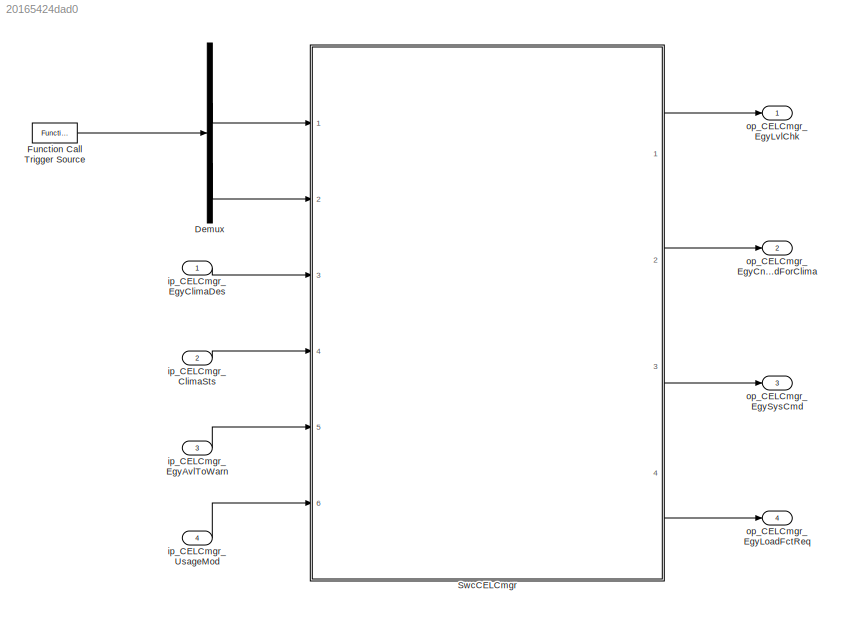
MODEL slx_20165424dad0
KIND model
CONFIG AbsTol = auto
CONFIG EnableMultiTasking = on
CONFIG FixedStep = auto
CONFIG MaxStep = auto
CONFIG MinStep = auto
CONFIG RelTol = 1e-3
CONFIG SampleTimeConstraint = Unconstrained
CONFIG Solver = FixedStepDiscrete
CONFIG SolverName = FixedStepDiscrete
CONFIG StartTime = 0.0
CONFIG StopTime = 50.0
BLOCK [Demux] Demux
  DisplayOption = bar
  Outputs = 2
  Ports = [1, 2]
BLOCK [Reference] Function Call Trigger Source  REF=simulink/Ports &
Subsystems/Function-Call
Generator
  Ports = [0, 1]
  SourceBlock = simulink/Ports &\nSubsystems/Function-Call\nGenerator
  SourceProductBaseCode = SL
  SourceProductName = Simulink
  SourceType = Function-Call Generator
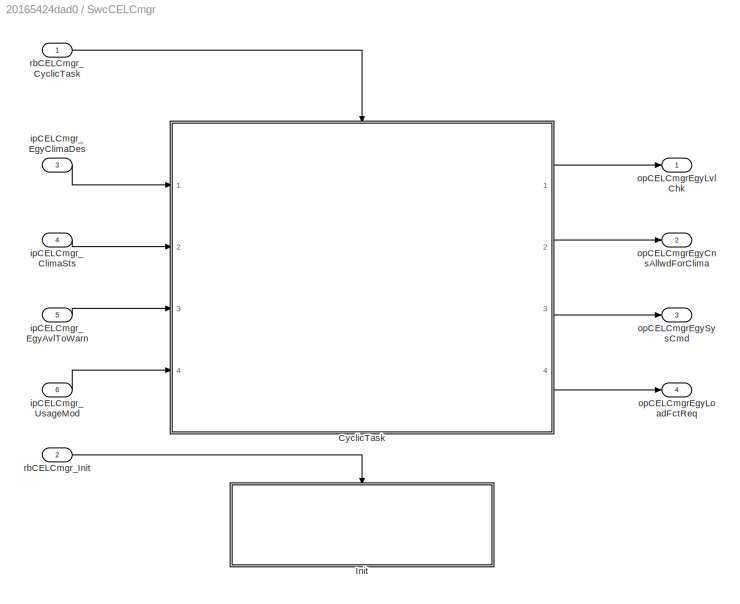
BLOCK [SubSystem] SwcCELCmgr
  Ports = [6, 4]
  RequestExecContextInheritance = off
  Variant = off
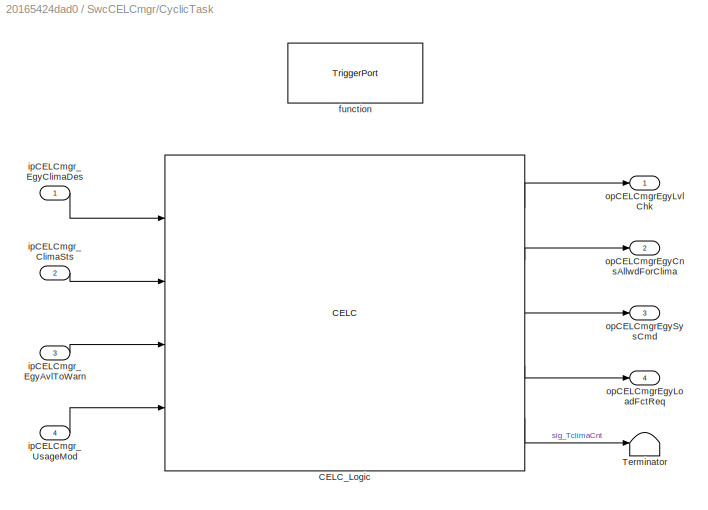
BLOCK [SubSystem] SwcCELCmgr/CyclicTask
  Description = Centralized energy load control function period task,T=10ms
  Ports = [4, 4, 0, 1]
  RequestExecContextInheritance = off
  Variant = off
BLOCK [Reference] SwcCELCmgr/CyclicTask/CELC_Logic  REF=CELCmgrLogicLib/CELC
  Ports = [4, 5]
  SourceBlock = CELCmgrLogicLib/CELC
  SourceType = SubSystem
BLOCK [Terminator] SwcCELCmgr/CyclicTask/Terminator
BLOCK [TriggerPort] SwcCELCmgr/CyclicTask/function
  PortDimensions = 1
  Ports = []
  StatesWhenEnabling = held
  TriggerType = function-call
  VariantControl = Variant
BLOCK [Inport] SwcCELCmgr/CyclicTask/ipCELCmgr_ClimaSts
  IconDisplay = Port number
  OutDataTypeStr = uint8
  Port = 2
  PortDimensions = 1
  SamplingMode = Sample based
  SignalType = real
  VarSizeSig = No
BLOCK [Inport] SwcCELCmgr/CyclicTask/ipCELCmgr_EgyAvlToWarn
  IconDisplay = Port number
  OutDataTypeStr = uint16
  Port = 3
  PortDimensions = 1
  SamplingMode = Sample based
  SignalType = real
  VarSizeSig = No
BLOCK [Inport] SwcCELCmgr/CyclicTask/ipCELCmgr_EgyClimaDes
  IconDisplay = Port number
  OutDataTypeStr = uint16
  PortDimensions = 1
  SamplingMode = Sample based
  SignalType = real
  VarSizeSig = No
BLOCK [Inport] SwcCELCmgr/CyclicTask/ipCELCmgr_UsageMod
  IconDisplay = Port number
  OutDataTypeStr = uint8
  Port = 4
  PortDimensions = 1
  SamplingMode = Sample based
  SignalType = real
  VarSizeSig = No
BLOCK [Outport] SwcCELCmgr/CyclicTask/opCELCmgrEgyCnsAllwdForClima
  IconDisplay = Port number
  OutDataTypeStr = uint16
  Port = 2
  PortDimensions = 1
  SamplingMode = Sample based
  SignalType = real
  VarSizeSig = No
BLOCK [Outport] SwcCELCmgr/CyclicTask/opCELCmgrEgyLoadFctReq
  IconDisplay = Port number
  OutDataTypeStr = uint8
  Port = 4
  PortDimensions = 1
  SamplingMode = Sample based
  SignalType = real
  VarSizeSig = No
BLOCK [Outport] SwcCELCmgr/CyclicTask/opCELCmgrEgyLvlChk
  IconDisplay = Port number
  OutDataTypeStr = uint8
  PortDimensions = 1
  SamplingMode = Sample based
  SignalType = real
  VarSizeSig = No
BLOCK [Outport] SwcCELCmgr/CyclicTask/opCELCmgrEgySysCmd
  IconDisplay = Port number
  OutDataTypeStr = uint8
  Port = 3
  PortDimensions = 1
  SamplingMode = Sample based
  SignalType = real
  VarSizeSig = No
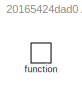
BLOCK [SubSystem] SwcCELCmgr/Init
  Description = Centralized energy load control initialize function
  Ports = [0, 0, 0, 1]
  RequestExecContextInheritance = off
  Variant = off
BLOCK [TriggerPort] SwcCELCmgr/Init/function
  PortDimensions = 1
  Ports = []
  StatesWhenEnabling = held
  TriggerType = function-call
  VariantControl = Variant
BLOCK [Inport] SwcCELCmgr/ipCELCmgr_ClimaSts
  IconDisplay = Port number
  OutDataTypeStr = uint8
  Port = 4
  PortDimensions = 1
  SamplingMode = Sample based
  SignalType = real
  VarSizeSig = No
BLOCK [Inport] SwcCELCmgr/ipCELCmgr_EgyAvlToWarn
  IconDisplay = Port number
  OutDataTypeStr = uint16
  Port = 5
  PortDimensions = 1
  SamplingMode = Sample based
  SignalType = real
  VarSizeSig = No
BLOCK [Inport] SwcCELCmgr/ipCELCmgr_EgyClimaDes
  IconDisplay = Port number
  OutDataTypeStr = uint16
  Port = 3
  PortDimensions = 1
  SamplingMode = Sample based
  SignalType = real
BLOCK [Inport] SwcCELCmgr/ipCELCmgr_UsageMod
  IconDisplay = Port number
  OutDataTypeStr = uint8
  Port = 6
  PortDimensions = 1
  SamplingMode = Sample based
  SignalType = real
  VarSizeSig = No
BLOCK [Outport] SwcCELCmgr/opCELCmgrEgyCnsAllwdForClima
  IconDisplay = Port number
  OutDataTypeStr = uint16
  Port = 2
  PortDimensions = 1
  SamplingMode = Sample based
  SignalType = real
  VarSizeSig = No
BLOCK [Outport] SwcCELCmgr/opCELCmgrEgyLoadFctReq
  IconDisplay = Port number
  OutDataTypeStr = uint8
  Port = 4
  PortDimensions = 1
  SamplingMode = Sample based
  SignalType = real
  VarSizeSig = No
BLOCK [Outport] SwcCELCmgr/opCELCmgrEgyLvlChk
  IconDisplay = Port number
  OutDataTypeStr = uint8
  PortDimensions = 1
  SamplingMode = Sample based
  SignalType = real
  VarSizeSig = No
BLOCK [Outport] SwcCELCmgr/opCELCmgrEgySysCmd
  IconDisplay = Port number
  OutDataTypeStr = uint8
  Port = 3
  PortDimensions = 1
  SamplingMode = Sample based
  SignalType = real
  VarSizeSig = No
BLOCK [Inport] SwcCELCmgr/rbCELCmgr_CyclicTask
  IconDisplay = Port number
BLOCK [Inport] SwcCELCmgr/rbCELCmgr_Init
  IconDisplay = Port number
  Port = 2
BLOCK [Inport] ip_CELCmgr_ClimaSts
  IconDisplay = Port number
  OutDataTypeStr = uint8
  Port = 2
  PortDimensions = 1
  SamplingMode = Sample based
  VarSizeSig = No
BLOCK [Inport] ip_CELCmgr_EgyAvlToWarn
  IconDisplay = Port number
  OutDataTypeStr = uint16
  Port = 3
  PortDimensions = 1
  SamplingMode = Sample based
  VarSizeSig = No
BLOCK [Inport] ip_CELCmgr_EgyClimaDes
  IconDisplay = Port number
  OutDataTypeStr = uint16
  PortDimensions = 1
  SamplingMode = Sample based
  SignalType = real
BLOCK [Inport] ip_CELCmgr_UsageMod
  IconDisplay = Port number
  OutDataTypeStr = uint8
  Port = 4
  PortDimensions = 1
  SamplingMode = Sample based
  SignalType = real
  VarSizeSig = No
BLOCK [Outport] op_CELCmgr_EgyCnsAllwdForClima
  IconDisplay = Port number
  OutDataTypeStr = uint16
  Port = 2
  PortDimensions = 1
  SamplingMode = Sample based
  SignalType = real
  VarSizeSig = No
BLOCK [Outport] op_CELCmgr_EgyLoadFctReq
  IconDisplay = Port number
  OutDataTypeStr = uint8
  Port = 4
  PortDimensions = 1
  SamplingMode = Sample based
  SignalType = real
  VarSizeSig = No
BLOCK [Outport] op_CELCmgr_EgyLvlChk
  IconDisplay = Port number
  OutDataTypeStr = uint8
  PortDimensions = 1
  SamplingMode = Sample based
  SignalType = real
  VarSizeSig = No
BLOCK [Outport] op_CELCmgr_EgySysCmd
  IconDisplay = Port number
  OutDataTypeStr = uint8
  Port = 3
  PortDimensions = 1
  SamplingMode = Sample based
  SignalType = real
  VarSizeSig = No
LINE Demux:1 -> SwcCELCmgr:1
LINE Demux:2 -> SwcCELCmgr:2
LINE Function Call Trigger Source:1 -> Demux:1
LINE SwcCELCmgr/CyclicTask/CELC_Logic:1 -> SwcCELCmgr/CyclicTask/opCELCmgrEgyLvlChk:1
LINE SwcCELCmgr/CyclicTask/CELC_Logic:2 -> SwcCELCmgr/CyclicTask/opCELCmgrEgyCnsAllwdForClima:1
LINE SwcCELCmgr/CyclicTask/CELC_Logic:3 -> SwcCELCmgr/CyclicTask/opCELCmgrEgySysCmd:1
LINE SwcCELCmgr/CyclicTask/CELC_Logic:4 -> SwcCELCmgr/CyclicTask/opCELCmgrEgyLoadFctReq:1
LINE SwcCELCmgr/CyclicTask/CELC_Logic:5 -> SwcCELCmgr/CyclicTask/Terminator:1
LINE SwcCELCmgr/CyclicTask/ipCELCmgr_ClimaSts:1 -> SwcCELCmgr/CyclicTask/CELC_Logic:2
LINE SwcCELCmgr/CyclicTask/ipCELCmgr_EgyAvlToWarn:1 -> SwcCELCmgr/CyclicTask/CELC_Logic:3
LINE SwcCELCmgr/CyclicTask/ipCELCmgr_EgyClimaDes:1 -> SwcCELCmgr/CyclicTask/CELC_Logic:1
LINE SwcCELCmgr/CyclicTask/ipCELCmgr_UsageMod:1 -> SwcCELCmgr/CyclicTask/CELC_Logic:4
LINE SwcCELCmgr/CyclicTask:1 -> SwcCELCmgr/opCELCmgrEgyLvlChk:1
LINE SwcCELCmgr/CyclicTask:2 -> SwcCELCmgr/opCELCmgrEgyCnsAllwdForClima:1
LINE SwcCELCmgr/CyclicTask:3 -> SwcCELCmgr/opCELCmgrEgySysCmd:1
LINE SwcCELCmgr/CyclicTask:4 -> SwcCELCmgr/opCELCmgrEgyLoadFctReq:1
LINE SwcCELCmgr/ipCELCmgr_ClimaSts:1 -> SwcCELCmgr/CyclicTask:2
LINE SwcCELCmgr/ipCELCmgr_EgyAvlToWarn:1 -> SwcCELCmgr/CyclicTask:3
LINE SwcCELCmgr/ipCELCmgr_EgyClimaDes:1 -> SwcCELCmgr/CyclicTask:1
LINE SwcCELCmgr/ipCELCmgr_UsageMod:1 -> SwcCELCmgr/CyclicTask:4
LINE SwcCELCmgr/rbCELCmgr_CyclicTask:1 -> SwcCELCmgr/CyclicTask:trigger
LINE SwcCELCmgr/rbCELCmgr_Init:1 -> SwcCELCmgr/Init:trigger
LINE SwcCELCmgr:1 -> op_CELCmgr_EgyLvlChk:1
LINE SwcCELCmgr:2 -> op_CELCmgr_EgyCnsAllwdForClima:1
LINE SwcCELCmgr:3 -> op_CELCmgr_EgySysCmd:1
LINE SwcCELCmgr:4 -> op_CELCmgr_EgyLoadFctReq:1
LINE ip_CELCmgr_ClimaSts:1 -> SwcCELCmgr:4
LINE ip_CELCmgr_EgyAvlToWarn:1 -> SwcCELCmgr:5
LINE ip_CELCmgr_EgyClimaDes:1 -> SwcCELCmgr:3
LINE ip_CELCmgr_UsageMod:1 -> SwcCELCmgr:6
